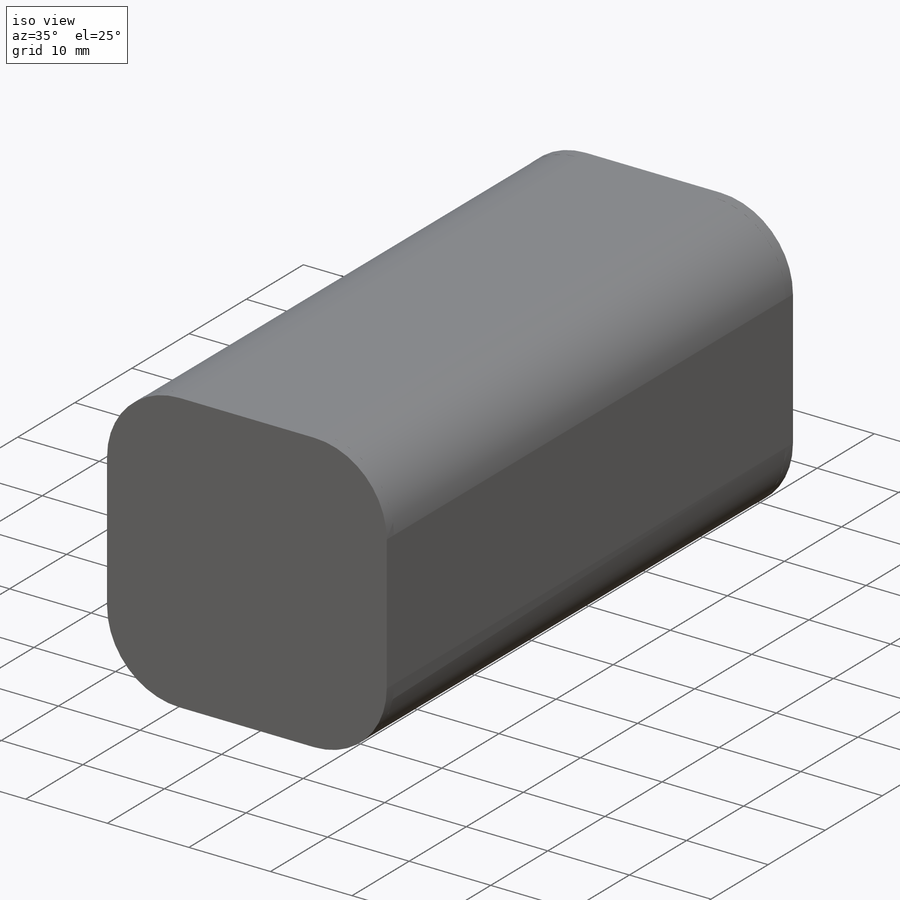
[diagram: iso view]
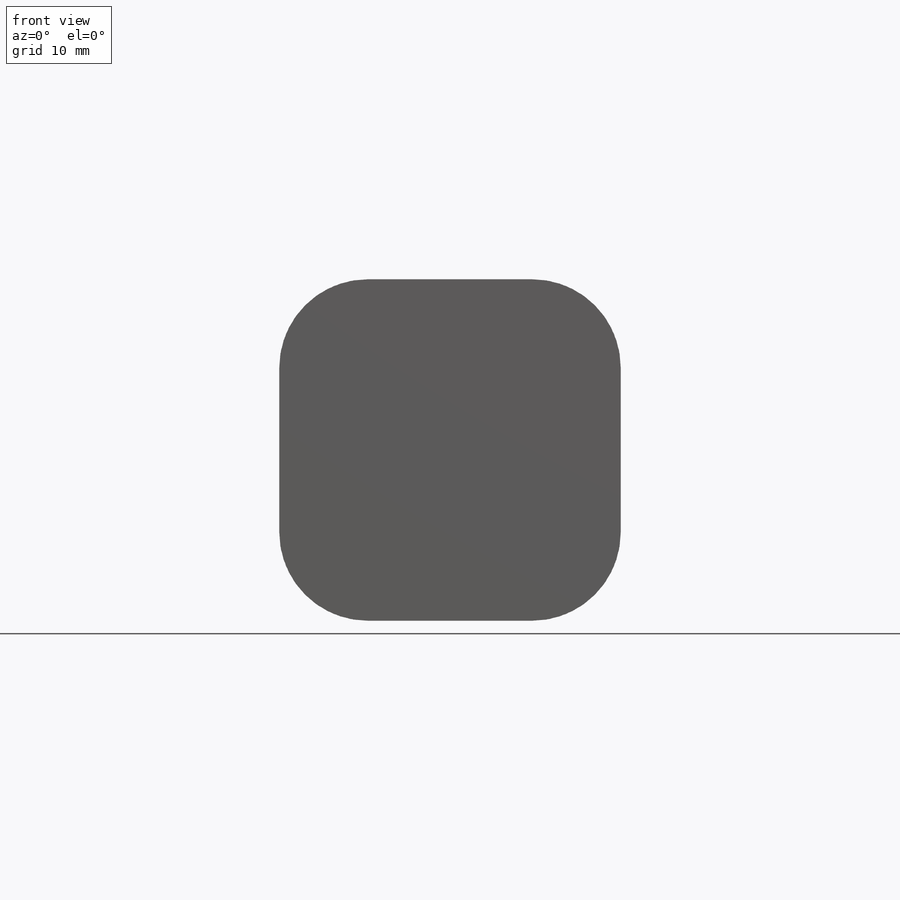
[diagram: front view]
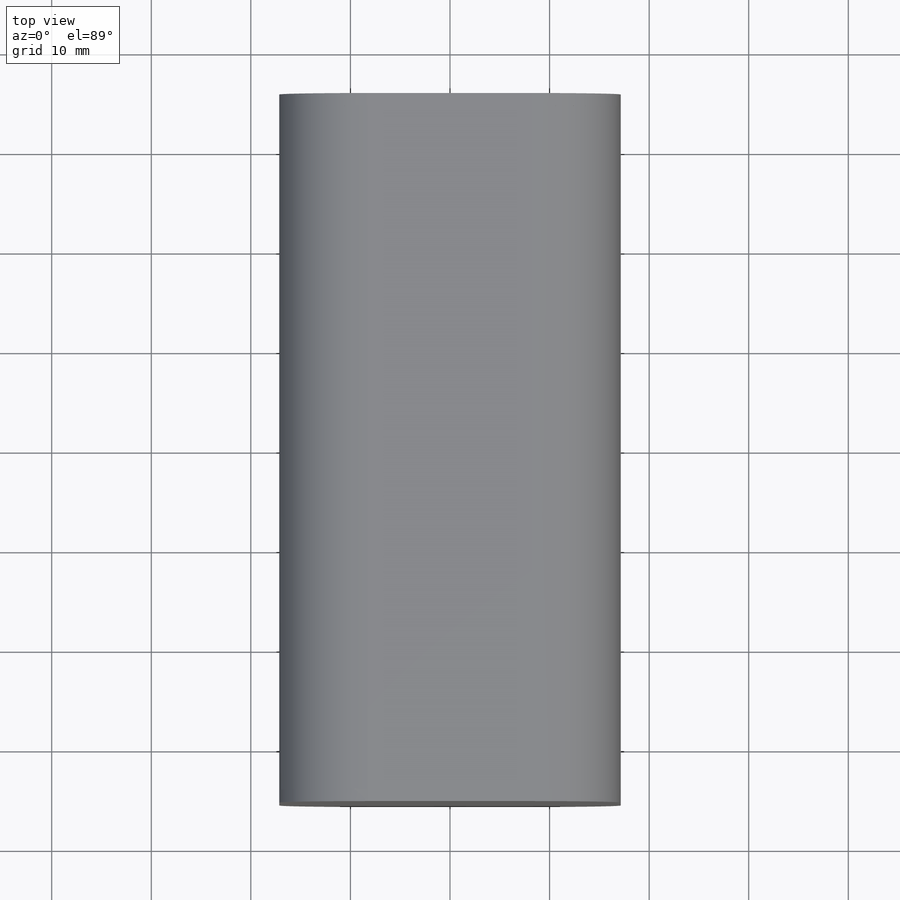
[diagram: top view]
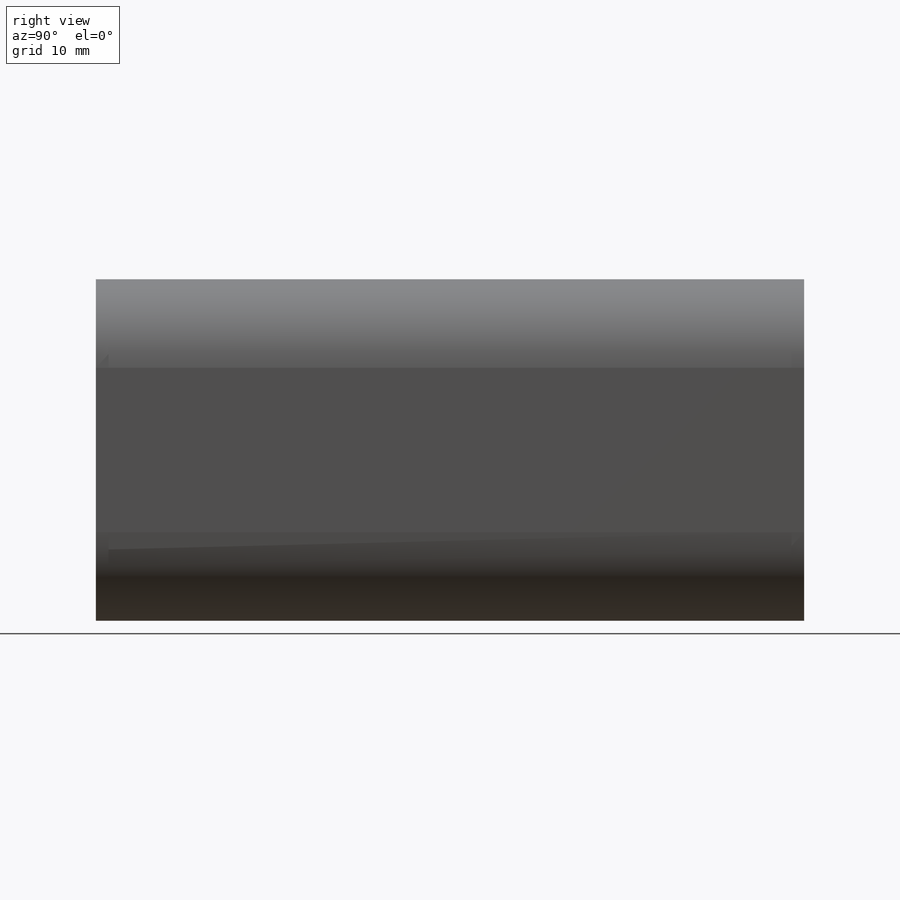
[diagram: right view]
SOLIDWORKS PART (.sldprt)
format: sldprt  version: not decoded by parser v0  size: 225,280 bytes
history: native  units: mm
features: sketch x3, extrude x3, material x1, mirror x1 (+16 scaffold rows collapsed)
feature tree (24):
  scaffold x16  (default folders/planes/origin — collapsed)
  material  "Material <not specified>"
  sketch  "Sketch2"  dims[D1=16.51mm]
  extrude  "Extrude1"  Depth=68.58mm
  sketch  "Sketch3"  dims[D1=8.255mm D2=0.635mm]
  extrude  "Extrude2"  Depth=68.58mm
  sketch  "Sketch4"  dims[D1=0.0mm]
  extrude  "Boss-Extrude2"  Depth=1.27mm
  mirror  "Mirror1"
decode coverage: 6 of 7 modeling features carry decoded parameters
note: suppression state not decoded; provenance and decode notes live in map.json
